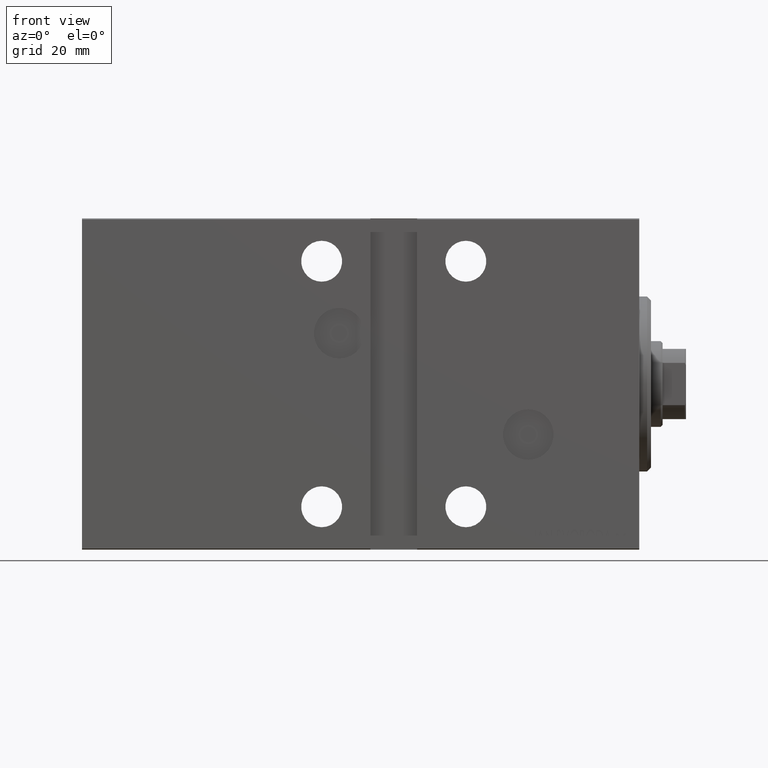
[diagram: clean part render]
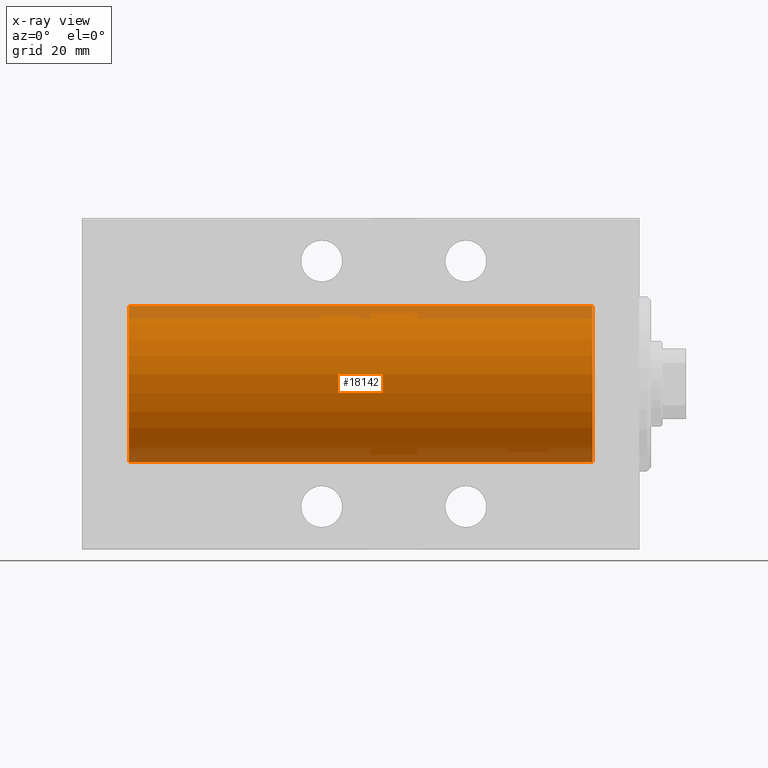
[diagram: x-ray — body ghosted, one internal face saturated and labeled with its STEP entity id]
A machine part, front view, then the same camera in x-ray: the body is ghosted and one INTERNAL B-rep face — a face not visible from any outside direction — is saturated and labeled: STEP entity #18142.
In plain terms, the highlighted cylindrical surface (partial cylindrical patch) has radius 20 mm, axis along (1, 0, -0).
Its self-contained STEP definition (entity closure, byte-faithful):
#653 = EDGE_CURVE ( 'NONE', #31171, #11493, #19544, .T. ) ;
#2375 = ORIENTED_EDGE ( 'NONE', *, *, #19837, .F. ) ;
#2773 = CARTESIAN_POINT ( 'NONE',  ( 131.0000000000000000, 0.000000000000000000, 0.000000000000000000 ) ) ;
#2901 = DIRECTION ( 'NONE',  ( -1.000000000000000000, -0.000000000000000000, -0.000000000000000000 ) ) ;
#8235 = ORIENTED_EDGE ( 'NONE', *, *, #653, .F. ) ;
#10432 = VECTOR ( 'NONE', #21204, 1000.000000000000000 ) ;
#11027 = CARTESIAN_POINT ( 'NONE',  ( 131.0000000000000000, 2.449293598294706513E-15, -20.00000000000000000 ) ) ;
#11430 = FACE_OUTER_BOUND ( 'NONE', #19403, .T. ) ;
#11493 = VERTEX_POINT ( 'NONE', #29238 ) ;
#11643 = CYLINDRICAL_SURFACE ( 'NONE', #40081, 20.00000000000000000 ) ;
#12495 = AXIS2_PLACEMENT_3D ( 'NONE', #2773, #22302, #39376 ) ;
#13184 = CARTESIAN_POINT ( 'NONE',  ( 11.99999999999999645, 0.000000000000000000, 20.00000000000000000 ) ) ;
#13871 = VERTEX_POINT ( 'NONE', #13184 ) ;
#15089 = CARTESIAN_POINT ( 'NONE',  ( 131.0000000000000000, 0.000000000000000000, 20.00000000000000000 ) ) ;
#15374 = CARTESIAN_POINT ( 'NONE',  ( 11.99999999999999645, 0.000000000000000000, 0.000000000000000000 ) ) ;
#16466 = DIRECTION ( 'NONE',  ( -1.000000000000000000, 0.000000000000000000, 0.000000000000000000 ) ) ;
#17431 = DIRECTION ( 'NONE',  ( -1.000000000000000000, -0.000000000000000000, -0.000000000000000000 ) ) ;
#18142 = ADVANCED_FACE ( 'NONE', ( #11430 ), #11643, .F. ) ;
#19403 = EDGE_LOOP ( 'NONE', ( #8235, #2375, #29933, #23061 ) ) ;
#19544 = LINE ( 'NONE', #19988, #42977 ) ;
#19808 = DIRECTION ( 'NONE',  ( 0.000000000000000000, 0.000000000000000000, 1.000000000000000000 ) ) ;
#19837 = EDGE_CURVE ( 'NONE', #38252, #31171, #40795, .T. ) ;
#19988 = CARTESIAN_POINT ( 'NONE',  ( 131.0000000000000000, 2.449293598294706513E-15, -20.00000000000000000 ) ) ;
#20052 = EDGE_CURVE ( 'NONE', #13871, #11493, #42975, .T. ) ;
#21151 = EDGE_CURVE ( 'NONE', #38252, #13871, #41806, .T. ) ;
#21204 = DIRECTION ( 'NONE',  ( -1.000000000000000000, -0.000000000000000000, -0.000000000000000000 ) ) ;
#22302 = DIRECTION ( 'NONE',  ( -1.000000000000000000, 0.000000000000000000, 0.000000000000000000 ) ) ;
#23061 = ORIENTED_EDGE ( 'NONE', *, *, #20052, .T. ) ;
#27429 = CARTESIAN_POINT ( 'NONE',  ( 131.0000000000000000, 0.000000000000000000, 20.00000000000000000 ) ) ;
#29238 = CARTESIAN_POINT ( 'NONE',  ( 11.99999999999999645, 2.449293598294706513E-15, -20.00000000000000000 ) ) ;
#29598 = DIRECTION ( 'NONE',  ( 0.000000000000000000, 0.000000000000000000, 1.000000000000000000 ) ) ;
#29933 = ORIENTED_EDGE ( 'NONE', *, *, #21151, .T. ) ;
#31171 = VERTEX_POINT ( 'NONE', #11027 ) ;
#32335 = AXIS2_PLACEMENT_3D ( 'NONE', #15374, #16466, #19808 ) ;
#37632 = CARTESIAN_POINT ( 'NONE',  ( 131.0000000000000000, 0.000000000000000000, 0.000000000000000000 ) ) ;
#38252 = VERTEX_POINT ( 'NONE', #15089 ) ;
#39376 = DIRECTION ( 'NONE',  ( 0.000000000000000000, 0.000000000000000000, 1.000000000000000000 ) ) ;
#40081 = AXIS2_PLACEMENT_3D ( 'NONE', #37632, #17431, #29598 ) ;
#40795 = CIRCLE ( 'NONE', #12495, 20.00000000000000000 ) ;
#41806 = LINE ( 'NONE', #27429, #10432 ) ;
#42975 = CIRCLE ( 'NONE', #32335, 20.00000000000000000 ) ;
#42977 = VECTOR ( 'NONE', #2901, 1000.000000000000000 ) ;